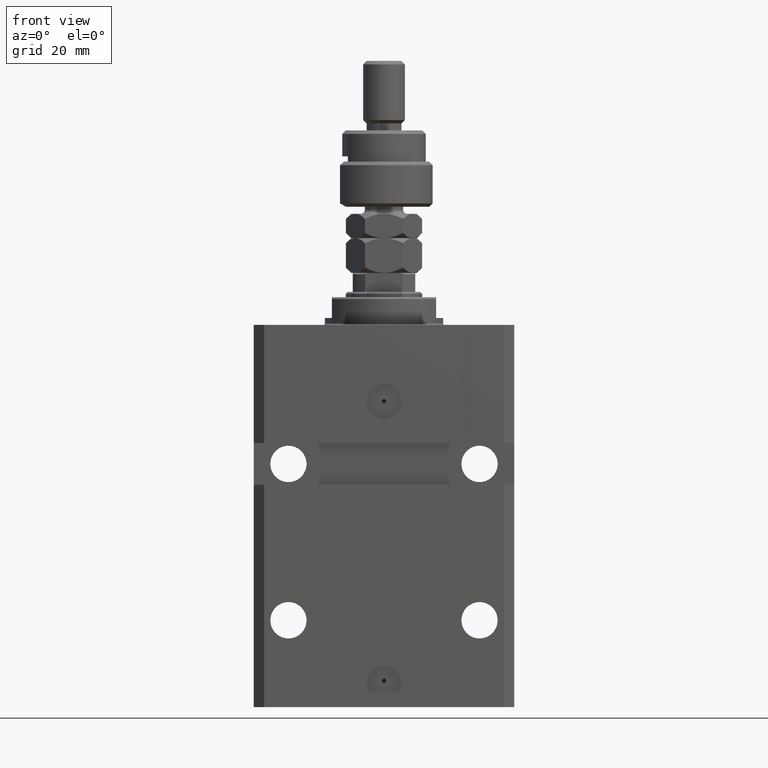
[diagram: clean part render]
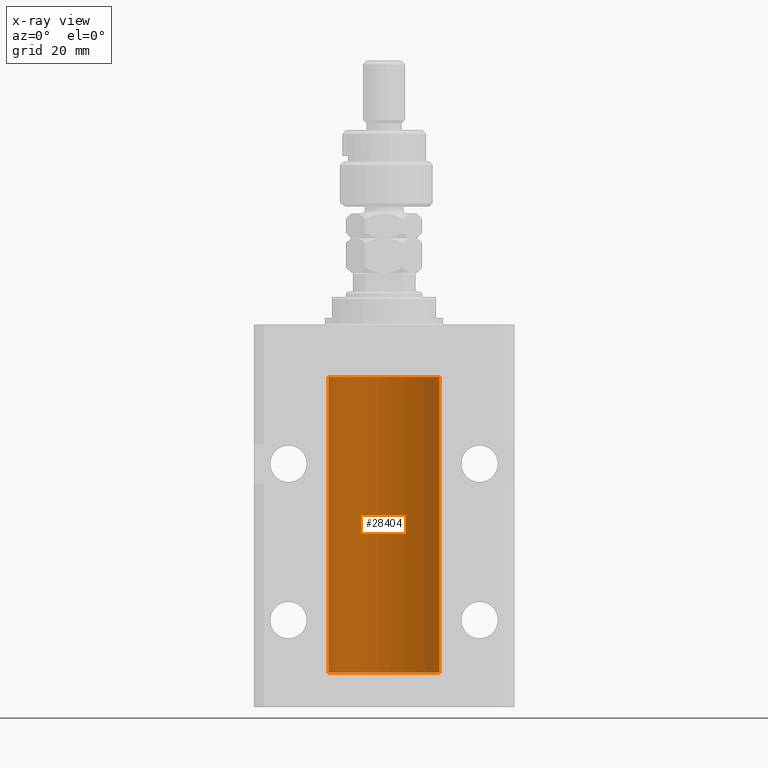
[diagram: x-ray — body ghosted, one internal face saturated and labeled with its STEP entity id]
A machine part, front view, then the same camera in x-ray: the body is ghosted and one INTERNAL B-rep face — a face not visible from any outside direction — is saturated and labeled: STEP entity #28404.
In plain terms, the highlighted cylindrical surface (partial cylindrical patch) has radius 16 mm, axis along (0, 0, 1).
Its self-contained STEP definition (entity closure, byte-faithful):
#388 = CARTESIAN_POINT ( 'NONE',  ( -16.00000000000000000, 1.959434878635765131E-15, -100.0999999999999943 ) ) ;
#452 = CARTESIAN_POINT ( 'NONE',  ( -15.99228023727724057, 0.5003781296993360383, -98.38347829554236057 ) ) ;
#1000 = ORIENTED_EDGE ( 'NONE', *, *, #43913, .F. ) ;
#1793 = CARTESIAN_POINT ( 'NONE',  ( -15.99228023727724413, 0.5003781296993413674, -22.38347829554236057 ) ) ;
#1965 = DIRECTION ( 'NONE',  ( 1.000000000000000000, 0.000000000000000000, 0.000000000000000000 ) ) ;
#2534 = VECTOR ( 'NONE', #28231, 1000.000000000000000 ) ;
#2556 = VECTOR ( 'NONE', #15600, 1000.000000000000000 ) ;
#3510 = CARTESIAN_POINT ( 'NONE',  ( -15.98779057735153941, 0.6249419637998017141, -97.83670145863504786 ) ) ;
#3754 = CARTESIAN_POINT ( 'NONE',  ( -15.99070426498503572, 0.5462220647145610286, -98.31460064614144301 ) ) ;
#5096 = CARTESIAN_POINT ( 'NONE',  ( -16.00000000000000000, 0.1631714642025800244, -22.62499999999985789 ) ) ;
#5100 = VERTEX_POINT ( 'NONE', #36678 ) ;
#5341 = CARTESIAN_POINT ( 'NONE',  ( -15.99070426498503217, 0.5462220647145618058, -22.31460064614143590 ) ) ;
#5594 = CARTESIAN_POINT ( 'NONE',  ( -16.00000000000000000, 1.643679961284177128E-16, -21.37499999999999645 ) ) ;
#5706 = DIRECTION ( 'NONE',  ( 0.000000000000000000, 0.000000000000000000, 1.000000000000000000 ) ) ;
#7257 = DIRECTION ( 'NONE',  ( -0.000000000000000000, -0.000000000000000000, 1.000000000000000000 ) ) ;
#7565 = CARTESIAN_POINT ( 'NONE',  ( -15.99548640841682712, 0.3843705577988784650, -97.50046628527007897 ) ) ;
#7670 = DIRECTION ( 'NONE',  ( -0.000000000000000000, -0.000000000000000000, 1.000000000000000000 ) ) ;
#7807 = CARTESIAN_POINT ( 'NONE',  ( -15.98778717651346604, 0.6250289588122097673, -98.08131585687051768 ) ) ;
#8648 = CARTESIAN_POINT ( 'NONE',  ( -16.00000000000013145, 3.685127038166941002E-13, -22.62500000000341771 ) ) ;
#9825 = ORIENTED_EDGE ( 'NONE', *, *, #44343, .F. ) ;
#10114 = CARTESIAN_POINT ( 'NONE',  ( -16.00000000000013145, 3.685127038166941002E-13, -22.62500000000341771 ) ) ;
#11306 = CIRCLE ( 'NONE', #39650, 16.00000000000000000 ) ;
#13370 = DIRECTION ( 'NONE',  ( -0.000000000000000000, -0.000000000000000000, 1.000000000000000000 ) ) ;
#13944 = EDGE_CURVE ( 'NONE', #5100, #39278, #32786, .T. ) ;
#14376 = VERTEX_POINT ( 'NONE', #29973 ) ;
#14954 = EDGE_LOOP ( 'NONE', ( #9825, #23083, #49137, #44108, #15208, #42402, #1000, #39800 ) ) ;
#15167 = CARTESIAN_POINT ( 'NONE',  ( -15.99934216141748244, 0.1636497843296308152, -97.39126528029306940 ) ) ;
#15208 = ORIENTED_EDGE ( 'NONE', *, *, #45008, .F. ) ;
#15600 = DIRECTION ( 'NONE',  ( -0.000000000000000000, -0.000000000000000000, 1.000000000000000000 ) ) ;
#15917 = CARTESIAN_POINT ( 'NONE',  ( -15.99999999999998934, 0.1631714642025804407, -98.62499999999987210 ) ) ;
#16261 = CARTESIAN_POINT ( 'NONE',  ( -15.99934216141748244, 0.1636497843296417787, -21.39126528029306229 ) ) ;
#18391 = VERTEX_POINT ( 'NONE', #47101 ) ;
#18788 = VECTOR ( 'NONE', #7257, 1000.000000000000000 ) ;
#18912 = CARTESIAN_POINT ( 'NONE',  ( -16.00000000000000000, 1.959434878635765131E-15, -100.0999999999999943 ) ) ;
#18922 = DIRECTION ( 'NONE',  ( 0.000000000000000000, 0.000000000000000000, 1.000000000000000000 ) ) ;
#19231 = CARTESIAN_POINT ( 'NONE',  ( -15.99711699979841661, 0.3253759916140614439, -98.55856151623174810 ) ) ;
#19339 = CARTESIAN_POINT ( 'NONE',  ( -16.00000000000000000, 1.643679961284177128E-16, -21.37499999999999645 ) ) ;
#19347 = LINE ( 'NONE', #38612, #36607 ) ;
#19412 = LINE ( 'NONE', #18912, #2556 ) ;
#20045 = B_SPLINE_CURVE_WITH_KNOTS ( 'NONE', 3,
 ( #31151, #31388, #15167, #27349, #7565, #46112, #3510, #7807, #35199, #3754, #452, #19231, #15917, #46866 ),
 .UNSPECIFIED., .F., .F.,
 ( 4, 2, 2, 2, 2, 2, 4 ),
 ( 1.003919637555167698E-18, 0.0002442776652680894158, 0.0004885553305361776391, 0.0009771106610723541940, 0.001221388326340463017, 0.001465665991608572274, 0.001954221322144760863 ),
 .UNSPECIFIED. ) ;
#21505 = CARTESIAN_POINT ( 'NONE',  ( 0.000000000000000000, 0.000000000000000000, -100.0999999999999943 ) ) ;
#22107 = CARTESIAN_POINT ( 'NONE',  ( -16.00000000000000000, -1.303459030566954747E-14, -97.37500000000000000 ) ) ;
#23083 = ORIENTED_EDGE ( 'NONE', *, *, #23930, .F. ) ;
#23885 = AXIS2_PLACEMENT_3D ( 'NONE', #44758, #5706, #36398 ) ;
#23930 = EDGE_CURVE ( 'NONE', #14376, #18391, #11306, .T. ) ;
#24312 = AXIS2_PLACEMENT_3D ( 'NONE', #21505, #13370, #1965 ) ;
#24680 = LINE ( 'NONE', #44444, #2534 ) ;
#24762 = VERTEX_POINT ( 'NONE', #22107 ) ;
#24983 = VERTEX_POINT ( 'NONE', #10114 ) ;
#26062 = CYLINDRICAL_SURFACE ( 'NONE', #24312, 16.00000000000000000 ) ;
#26286 = VERTEX_POINT ( 'NONE', #29860 ) ;
#26792 = DIRECTION ( 'NONE',  ( 1.000000000000000000, 0.000000000000000000, 0.000000000000000000 ) ) ;
#27349 = CARTESIAN_POINT ( 'NONE',  ( -15.99707730059171240, 0.3150375992092294686, -97.45402333202572720 ) ) ;
#28189 = CARTESIAN_POINT ( 'NONE',  ( -16.00000000000000711, 0.08259886010189904093, -21.37500000000000000 ) ) ;
#28231 = DIRECTION ( 'NONE',  ( -0.000000000000000000, -0.000000000000000000, 1.000000000000000000 ) ) ;
#28404 = ADVANCED_FACE ( 'NONE', ( #40518 ), #26062, .F. ) ;
#29860 = CARTESIAN_POINT ( 'NONE',  ( -16.00000000000013145, 3.685127046438747128E-13, -98.62500000000343903 ) ) ;
#29973 = CARTESIAN_POINT ( 'NONE',  ( 16.00000000000000000, 0.000000000000000000, -100.0999999999999943 ) ) ;
#31151 = CARTESIAN_POINT ( 'NONE',  ( -16.00000000000000000, -1.303459030566954747E-14, -97.37500000000000000 ) ) ;
#31388 = CARTESIAN_POINT ( 'NONE',  ( -16.00000000000000711, 0.08259886010188650929, -97.37500000000000000 ) ) ;
#31641 = EDGE_CURVE ( 'NONE', #14376, #5100, #24680, .T. ) ;
#32229 = CARTESIAN_POINT ( 'NONE',  ( -15.99070653155267685, 0.5573233280232986475, -21.67348148680506625 ) ) ;
#32786 = CIRCLE ( 'NONE', #23885, 16.00000000000000000 ) ;
#35136 = LINE ( 'NONE', #388, #18788 ) ;
#35199 = CARTESIAN_POINT ( 'NONE',  ( -15.98844267028590949, 0.6088369347963275002, -98.16324735024325321 ) ) ;
#35322 = VERTEX_POINT ( 'NONE', #19339 ) ;
#36398 = DIRECTION ( 'NONE',  ( 1.000000000000000000, 0.000000000000000000, 0.000000000000000000 ) ) ;
#36543 = CARTESIAN_POINT ( 'NONE',  ( -15.98779057735153941, 0.6249419637998100407, -21.83670145863507273 ) ) ;
#36607 = VECTOR ( 'NONE', #7670, 1000.000000000000000 ) ;
#36678 = CARTESIAN_POINT ( 'NONE',  ( 16.00000000000000000, 0.000000000000000000, -15.00000000000000000 ) ) ;
#38612 = CARTESIAN_POINT ( 'NONE',  ( -16.00000000000000000, 1.959434878635765131E-15, -100.0999999999999943 ) ) ;
#39278 = VERTEX_POINT ( 'NONE', #45735 ) ;
#39339 = CARTESIAN_POINT ( 'NONE',  ( -15.98778717651346071, 0.6250289588122140971, -22.08131585687052478 ) ) ;
#39608 = EDGE_CURVE ( 'NONE', #24762, #26286, #20045, .T. ) ;
#39650 = AXIS2_PLACEMENT_3D ( 'NONE', #46307, #18922, #26792 ) ;
#39800 = ORIENTED_EDGE ( 'NONE', *, *, #39608, .T. ) ;
#39842 = CARTESIAN_POINT ( 'NONE',  ( -15.99707730059171240, 0.3150375992092407373, -21.45402333202571654 ) ) ;
#40091 = CARTESIAN_POINT ( 'NONE',  ( -15.99548640841683067, 0.3843705577988847377, -21.50046628527008608 ) ) ;
#40518 = FACE_OUTER_BOUND ( 'NONE', #14954, .T. ) ;
#42402 = ORIENTED_EDGE ( 'NONE', *, *, #42490, .T. ) ;
#42490 = EDGE_CURVE ( 'NONE', #35322, #24983, #42769, .T. ) ;
#42769 = B_SPLINE_CURVE_WITH_KNOTS ( 'NONE', 3,
 ( #5594, #28189, #16261, #39842, #40091, #32229, #36543, #39339, #47207, #5341, #1793, #43644, #5096, #8648 ),
 .UNSPECIFIED., .F., .F.,
 ( 4, 2, 2, 2, 2, 2, 4 ),
 ( 1.597328219370744179E-19, 0.0002442776652680942405, 0.0004885553305361882643, 0.0009771106610723839011, 0.001221388326340481665, 0.001465665991608579430, 0.001954221322144767369 ),
 .UNSPECIFIED. ) ;
#43644 = CARTESIAN_POINT ( 'NONE',  ( -15.99711699979842017, 0.3253759916140657737, -22.55856151623175521 ) ) ;
#43913 = EDGE_CURVE ( 'NONE', #24762, #24983, #19412, .T. ) ;
#44108 = ORIENTED_EDGE ( 'NONE', *, *, #13944, .T. ) ;
#44343 = EDGE_CURVE ( 'NONE', #18391, #26286, #19347, .T. ) ;
#44444 = CARTESIAN_POINT ( 'NONE',  ( 16.00000000000000000, 0.000000000000000000, -100.0999999999999943 ) ) ;
#44758 = CARTESIAN_POINT ( 'NONE',  ( 0.000000000000000000, 0.000000000000000000, -15.00000000000000000 ) ) ;
#45008 = EDGE_CURVE ( 'NONE', #35322, #39278, #35136, .T. ) ;
#45735 = CARTESIAN_POINT ( 'NONE',  ( -16.00000000000000000, 1.959434878635765131E-15, -15.00000000000000000 ) ) ;
#46112 = CARTESIAN_POINT ( 'NONE',  ( -15.99070653155267685, 0.5573233280232928744, -97.67348148680505915 ) ) ;
#46307 = CARTESIAN_POINT ( 'NONE',  ( 0.000000000000000000, 0.000000000000000000, -100.0999999999999943 ) ) ;
#46866 = CARTESIAN_POINT ( 'NONE',  ( -16.00000000000013145, 3.685127046438747128E-13, -98.62500000000343903 ) ) ;
#47101 = CARTESIAN_POINT ( 'NONE',  ( -16.00000000000000000, 1.959434878635765131E-15, -100.0999999999999943 ) ) ;
#47207 = CARTESIAN_POINT ( 'NONE',  ( -15.98844267028591482, 0.6088369347963316081, -22.16324735024328518 ) ) ;
#49137 = ORIENTED_EDGE ( 'NONE', *, *, #31641, .T. ) ;